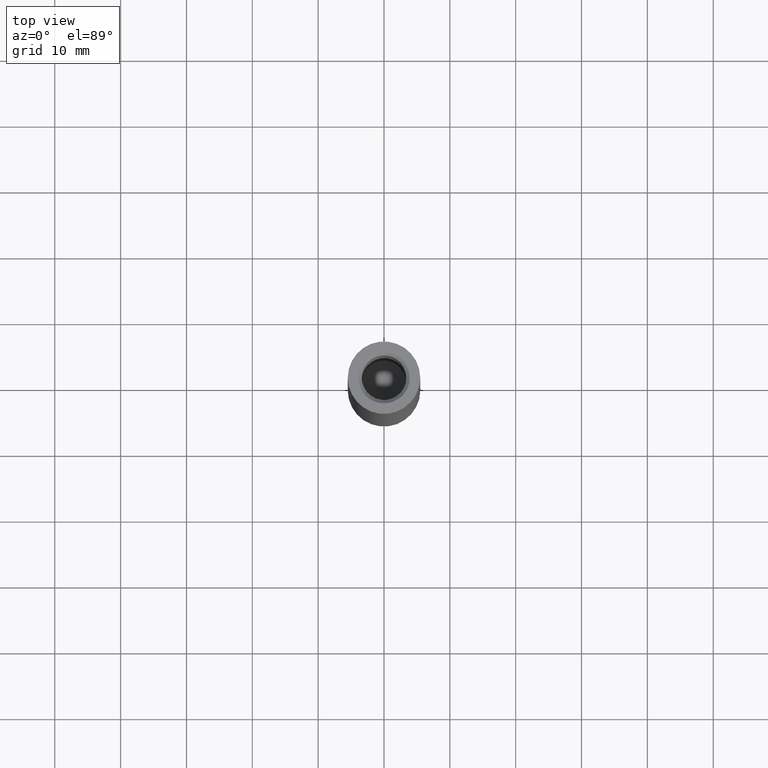
[diagram: clean part render]
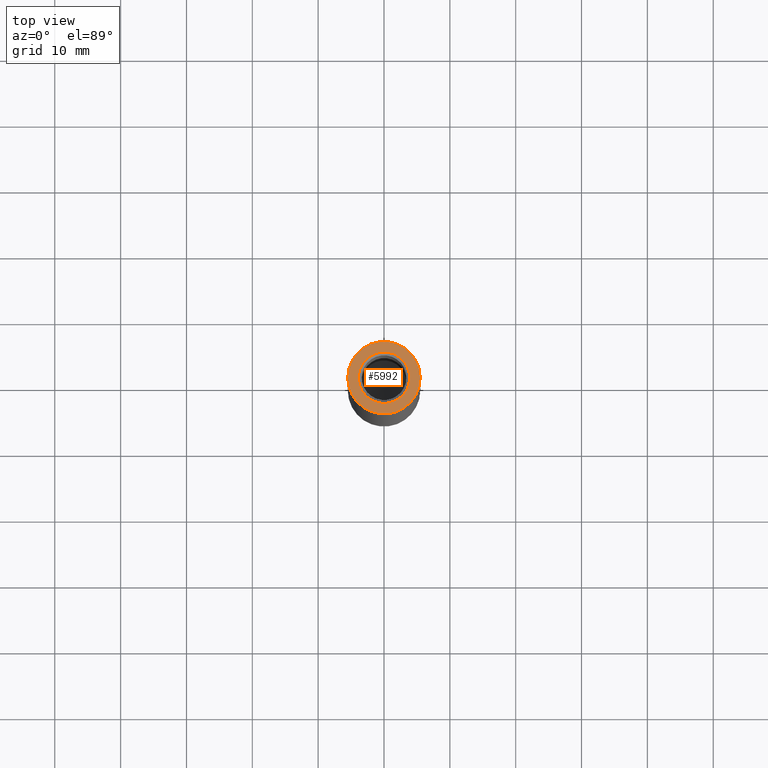
[diagram: same view with one face highlighted and labeled with its STEP entity id]
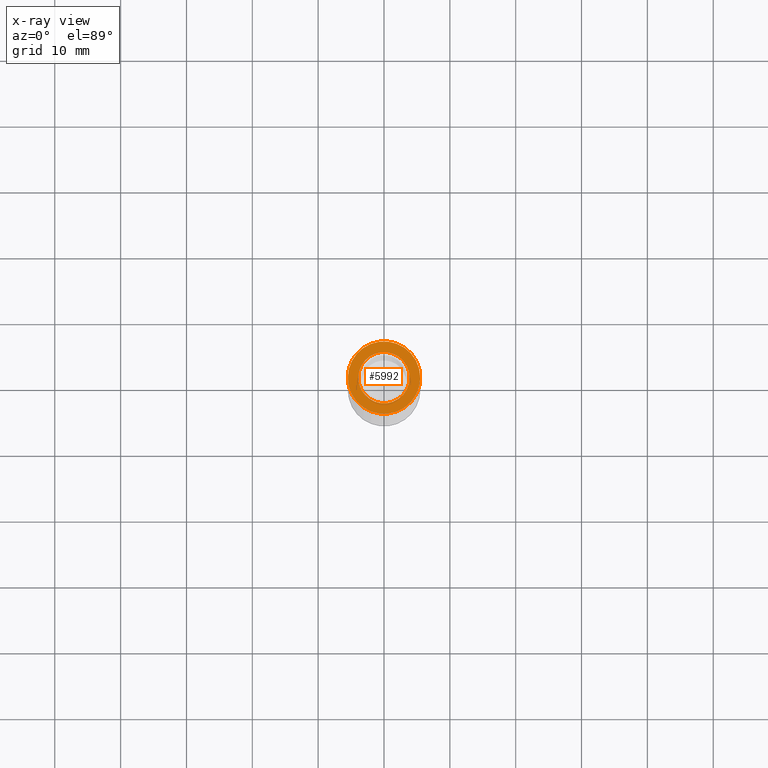
[diagram: x-ray of the same camera — body ghosted, the highlighted face saturated]
A machine part, top view. The second image highlights one B-rep face of the part: STEP entity #5992.
The next image is the same camera in x-ray: the body ghosted, the highlighted face saturated — about 0% of this face is hidden behind the body in this view.
In plain terms, the highlighted planar face has unit normal (0, 0, 1).
Its self-contained STEP definition (entity closure, byte-faithful):
#5 = DIRECTION ( 'NONE',  ( 1.000000000000000000, 0.000000000000000000, 0.000000000000000000 ) ) ;
#1656 = CARTESIAN_POINT ( 'NONE',  ( 5.500000000000000000, 0.000000000000000000, 55.00000000000000000 ) ) ;
#2152 = ORIENTED_EDGE ( 'NONE', *, *, #13656, .T. ) ;
#2303 = AXIS2_PLACEMENT_3D ( 'NONE', #10414, #13750, #5926 ) ;
#3577 = FACE_OUTER_BOUND ( 'NONE', #6462, .T. ) ;
#5165 = DIRECTION ( 'NONE',  ( 0.000000000000000000, 0.000000000000000000, 1.000000000000000000 ) ) ;
#5926 = DIRECTION ( 'NONE',  ( 1.000000000000000000, 0.000000000000000000, 0.000000000000000000 ) ) ;
#5992 = ADVANCED_FACE ( 'NONE', ( #10636, #3577 ), #9735, .T. ) ;
#6462 = EDGE_LOOP ( 'NONE', ( #2152 ) ) ;
#7011 = ORIENTED_EDGE ( 'NONE', *, *, #9185, .T. ) ;
#7031 = VERTEX_POINT ( 'NONE', #8284 ) ;
#7078 = CIRCLE ( 'NONE', #11347, 3.900000000000000799 ) ;
#8030 = DIRECTION ( 'NONE',  ( -0.000000000000000000, -0.000000000000000000, -1.000000000000000000 ) ) ;
#8284 = CARTESIAN_POINT ( 'NONE',  ( 3.900000000000000799, 0.000000000000000000, 55.00000000000000000 ) ) ;
#8881 = CIRCLE ( 'NONE', #2303, 5.500000000000000000 ) ;
#9185 = EDGE_CURVE ( 'NONE', #7031, #7031, #7078, .T. ) ;
#9735 = PLANE ( 'NONE',  #10740 ) ;
#10041 = VERTEX_POINT ( 'NONE', #1656 ) ;
#10414 = CARTESIAN_POINT ( 'NONE',  ( 0.000000000000000000, 0.000000000000000000, 55.00000000000000000 ) ) ;
#10636 = FACE_BOUND ( 'NONE', #12802, .T. ) ;
#10740 = AXIS2_PLACEMENT_3D ( 'NONE', #11876, #5165, #14152 ) ;
#11347 = AXIS2_PLACEMENT_3D ( 'NONE', #13614, #8030, #5 ) ;
#11876 = CARTESIAN_POINT ( 'NONE',  ( 0.000000000000000000, 0.000000000000000000, 55.00000000000000000 ) ) ;
#12802 = EDGE_LOOP ( 'NONE', ( #7011 ) ) ;
#13614 = CARTESIAN_POINT ( 'NONE',  ( 0.000000000000000000, 0.000000000000000000, 55.00000000000000000 ) ) ;
#13656 = EDGE_CURVE ( 'NONE', #10041, #10041, #8881, .T. ) ;
#13750 = DIRECTION ( 'NONE',  ( 0.000000000000000000, 0.000000000000000000, 1.000000000000000000 ) ) ;
#14152 = DIRECTION ( 'NONE',  ( 1.000000000000000000, 0.000000000000000000, -0.000000000000000000 ) ) ;